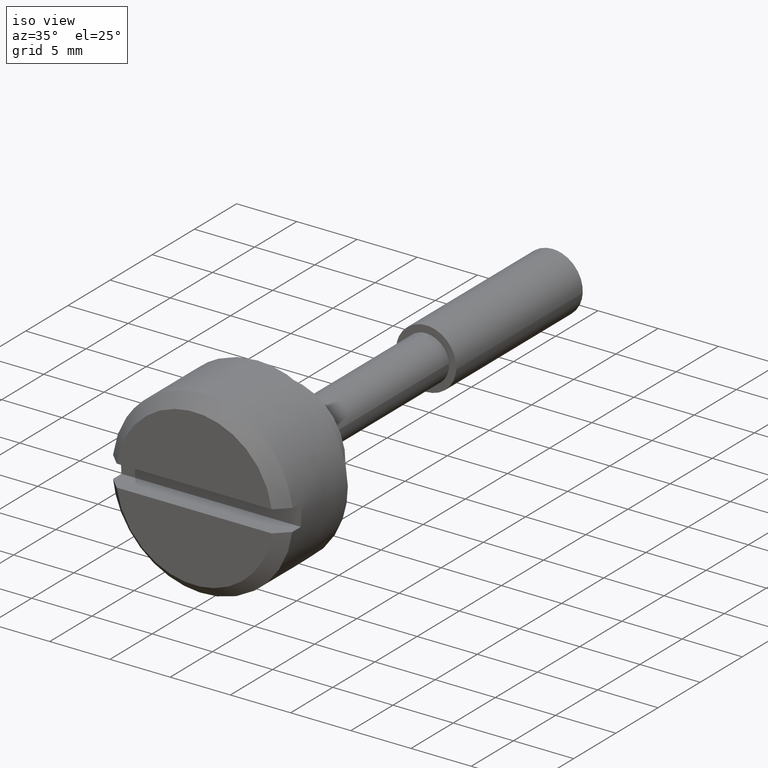
[diagram: clean part render]
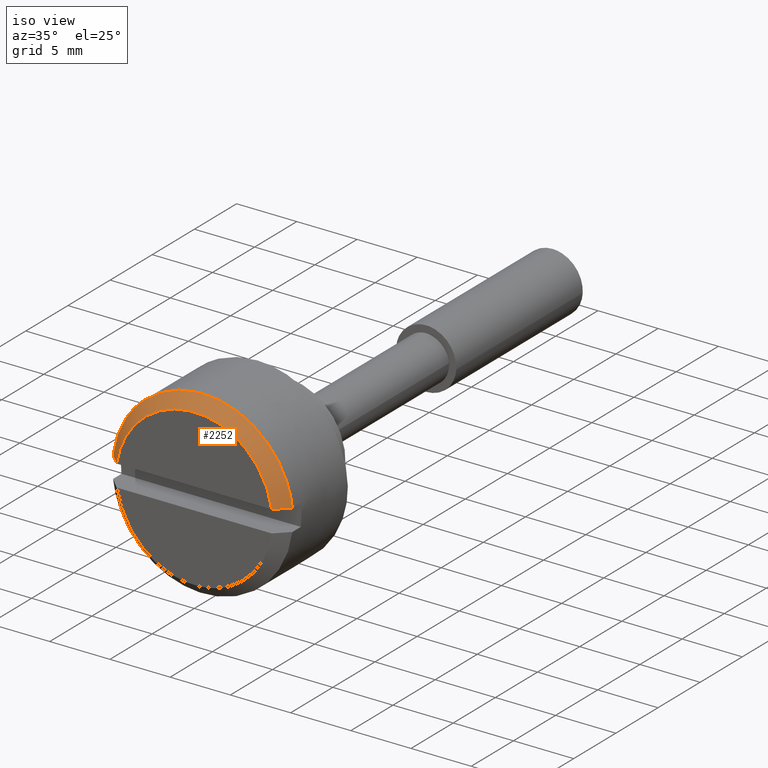
[diagram: same view with one face highlighted and labeled with its STEP entity id]
A machine part, iso view. The second image highlights one B-rep face of the part: STEP entity #2252.
In plain terms, the highlighted face is a freeform B-spline surface patch.
Its self-contained STEP definition (entity closure, byte-faithful):
#1844=CARTESIAN_POINT('',(-8.999900000000000,7.445804187594519,0.900000000000000));
#1845=VERTEX_POINT('',#1844);
#1851=CARTESIAN_POINT('',(-8.999900000000013,4.969650341392859,5.617167923811234));
#1852=VERTEX_POINT('',#1851);
#1853=CARTESIAN_POINT('',(-8.999900000000000,7.445804187594514,0.899999999999999));
#1854=CARTESIAN_POINT('',(-8.999900000000000,7.103855276699771,3.728982925203841));
#1855=CARTESIAN_POINT('',(-8.999900000000013,4.969650341392859,5.617167923811234));
#1863=(BOUNDED_CURVE()B_SPLINE_CURVE(2,(#1853,#1854,#1855),.UNSPECIFIED.,.F.,.U.)B_SPLINE_CURVE_WITH_KNOTS((3,3),(0.0,0.250310219604464),.UNSPECIFIED.)CURVE()GEOMETRIC_REPRESENTATION_ITEM()RATIONAL_B_SPLINE_CURVE((1.0,0.874009593658292,0.874165932434378))REPRESENTATION_ITEM(''));
#1864=EDGE_CURVE('',#1845,#1852,#1863,.T.);
#1924=CARTESIAN_POINT('',(-8.999900000000000,-7.445804187594519,0.900000000000000));
#1925=VERTEX_POINT('',#1924);
#1926=CARTESIAN_POINT('',(-8.999900000000013,4.969650341392859,5.617167923811234));
#1927=CARTESIAN_POINT('',(-8.999900000000000,2.841495784334151,7.500000000000000));
#1928=CARTESIAN_POINT('',(-8.999900000000000,0.0,7.500000000000000));
#1929=CARTESIAN_POINT('',(-8.999900000000000,-6.648039453209386,7.499999999999999));
#1930=CARTESIAN_POINT('',(-8.999900000000000,-7.445804187594514,0.900000000000001));
#1938=(BOUNDED_CURVE()B_SPLINE_CURVE(2,(#1926,#1927,#1928,#1929,#1930),.UNSPECIFIED.,.F.,.U.)B_SPLINE_CURVE_WITH_KNOTS((3,2,3),(0.250310219604464,0.500000000000000,1.0),.UNSPECIFIED.)CURVE()GEOMETRIC_REPRESENTATION_ITEM()RATIONAL_B_SPLINE_CURVE((0.874165932434378,0.874321883696496,1.0,0.748331477354788,1.0))REPRESENTATION_ITEM(''));
#1939=EDGE_CURVE('',#1852,#1925,#1938,.T.);
#2067=CARTESIAN_POINT('',(-9.999900000000000,-6.437390775772390,0.900000000000000));
#2068=VERTEX_POINT('',#2067);
#2069=CARTESIAN_POINT('',(-9.999900000000000,-6.437390775772390,0.900000000000000));
#2070=CARTESIAN_POINT('',(-9.666790425772755,-6.773750161947017,0.900000000000000));
#2071=CARTESIAN_POINT('',(-9.333419248877918,-7.109850490492675,0.900000000000000));
#2072=CARTESIAN_POINT('',(-8.999900000000000,-7.445804187594519,0.900000000000000));
#2073=B_SPLINE_CURVE_WITH_KNOTS('',3,(#2069,#2070,#2071,#2072),.UNSPECIFIED.,.F.,.U.,(4,4),(0.929162089459678,1.0),.UNSPECIFIED.);
#2074=EDGE_CURVE('',#2068,#1925,#2073,.T.);
#2076=CARTESIAN_POINT('',(-9.999900000000000,6.437390775772390,0.900000000000000));
#2077=VERTEX_POINT('',#2076);
#2083=CARTESIAN_POINT('',(-8.999900000000000,7.445804187594519,0.900000000000000));
#2084=CARTESIAN_POINT('',(-9.333419141448813,7.109850583502691,0.900000000000000));
#2085=CARTESIAN_POINT('',(-9.666790308170462,6.773750285482499,0.900000000000000));
#2086=CARTESIAN_POINT('',(-9.999900000000000,6.437390775772390,0.900000000000000));
#2087=B_SPLINE_CURVE_WITH_KNOTS('',3,(#2083,#2084,#2085,#2086),.UNSPECIFIED.,.F.,.U.,(4,4),(0.0,0.070808166643106),.UNSPECIFIED.);
#2088=EDGE_CURVE('',#1845,#2077,#2087,.T.);
#2213=CARTESIAN_POINT('',(-10.024900000000001,-6.454071600112195,0.520177643334644));
#2214=CARTESIAN_POINT('',(-8.974274999999999,-7.501300785419979,0.604580984883441));
#2215=CARTESIAN_POINT('',(-10.024900000000002,-5.964737335158588,6.591561953803933));
#2216=CARTESIAN_POINT('',(-8.974274999999999,-6.932567785004305,7.661100143412471));
#2217=CARTESIAN_POINT('',(-10.024900000000001,0.125195761933142,6.473789541002546));
#2218=CARTESIAN_POINT('',(-8.974274999999999,0.145509861914764,7.524218133514642));
#2219=CARTESIAN_POINT('',(-10.024900000000002,6.215128859024871,6.356017128201159));
#2220=CARTESIAN_POINT('',(-8.974274999999999,7.223587508833833,7.387336123616815));
#2221=CARTESIAN_POINT('',(-10.024900000000001,6.469357636956139,0.270253150133828));
#2222=CARTESIAN_POINT('',(-8.974274999999999,7.519067114535609,0.314104071502069));
#2230=(BOUNDED_SURFACE()B_SPLINE_SURFACE(1,2,((#2213,#2215,#2217,#2219,#2221),(#2214,#2216,#2218,#2220,#2222)),.UNSPECIFIED.,.F.,.F.,.U.)B_SPLINE_SURFACE_WITH_KNOTS((2,2),(3,2,3),(0.0,1.0),(0.0,11.933619185760000,23.867238371519999),.UNSPECIFIED.)GEOMETRIC_REPRESENTATION_ITEM()RATIONAL_B_SPLINE_SURFACE(((1.0,0.728370969882400,1.0,0.728370969882400,1.0),(1.0,0.728370969882400,1.0,0.728370969882400,1.0)))REPRESENTATION_ITEM('')SURFACE());
#2231=ORIENTED_EDGE('',*,*,#1939,.F.);
#2232=ORIENTED_EDGE('',*,*,#1864,.F.);
#2233=ORIENTED_EDGE('',*,*,#2088,.T.);
#2234=CARTESIAN_POINT('',(-9.999900000000000,-6.437390775772390,0.900000000000000));
#2235=CARTESIAN_POINT('',(-9.999900000000000,-5.654464870610917,6.500000000000000));
#2236=CARTESIAN_POINT('',(-9.999900000000000,0.0,6.500000000000000));
#2237=CARTESIAN_POINT('',(-9.999900000000000,5.654464870610915,6.500000000000000));
#2238=CARTESIAN_POINT('',(-9.999900000000000,6.437390775772390,0.900000000000000));
#2246=(BOUNDED_CURVE()B_SPLINE_CURVE(2,(#2234,#2235,#2236,#2237,#2238),.UNSPECIFIED.,.F.,.U.)B_SPLINE_CURVE_WITH_KNOTS((3,2,3),(0.0,0.500000000000000,1.0),.UNSPECIFIED.)CURVE()GEOMETRIC_REPRESENTATION_ITEM()RATIONAL_B_SPLINE_CURVE((1.0,0.754473836014722,1.0,0.754473836014722,1.0))REPRESENTATION_ITEM(''));
#2247=EDGE_CURVE('',#2068,#2077,#2246,.T.);
#2248=ORIENTED_EDGE('',*,*,#2247,.F.);
#2249=ORIENTED_EDGE('',*,*,#2074,.T.);
#2250=EDGE_LOOP('',(#2231,#2232,#2233,#2248,#2249));
#2251=FACE_OUTER_BOUND('',#2250,.T.);
#2252=ADVANCED_FACE('',(#2251),#2230,.T.);